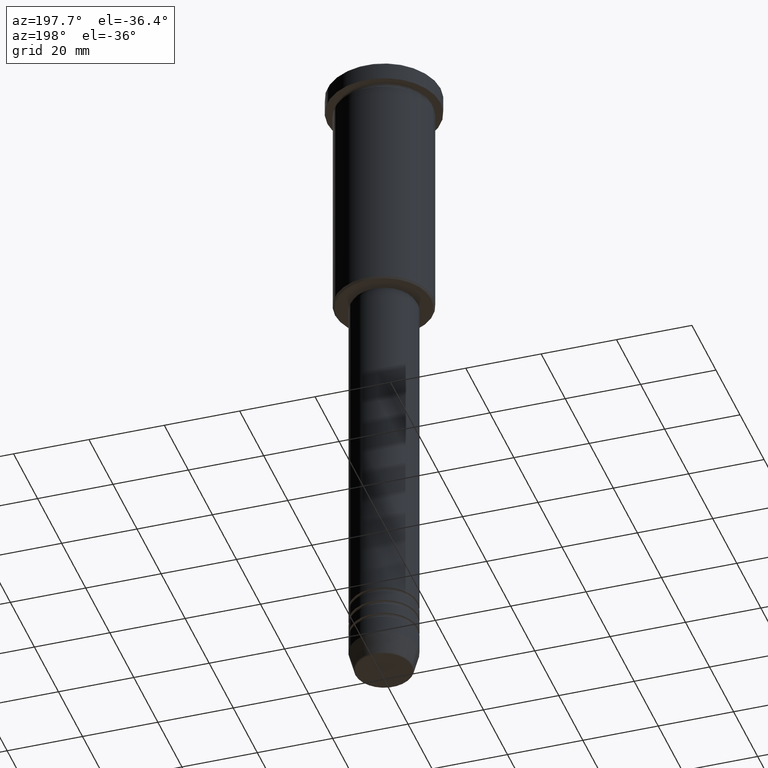
[diagram: clean part render]
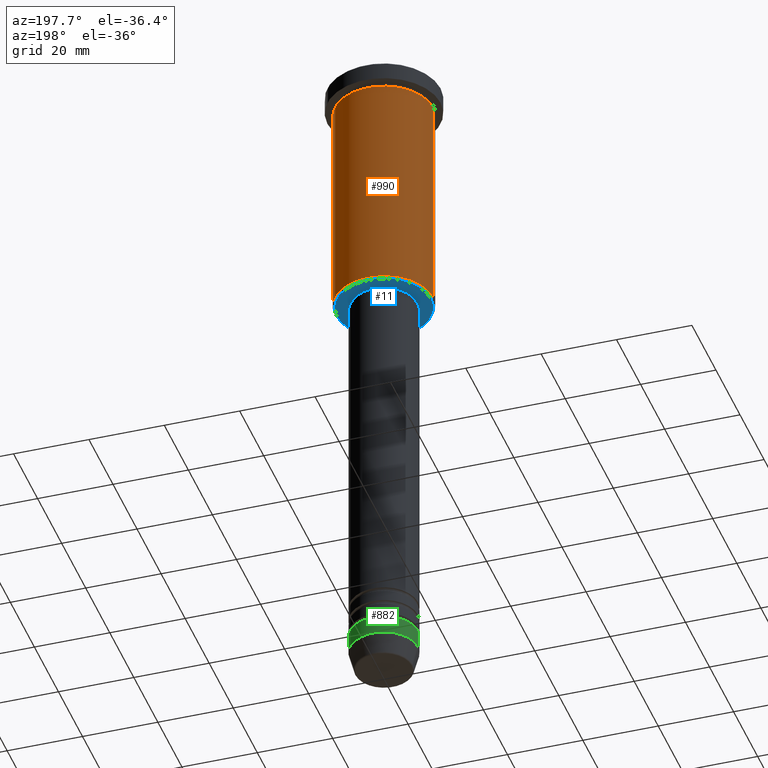
[diagram: same view with three faces highlighted in distinct colors, each labeled with its STEP entity id]
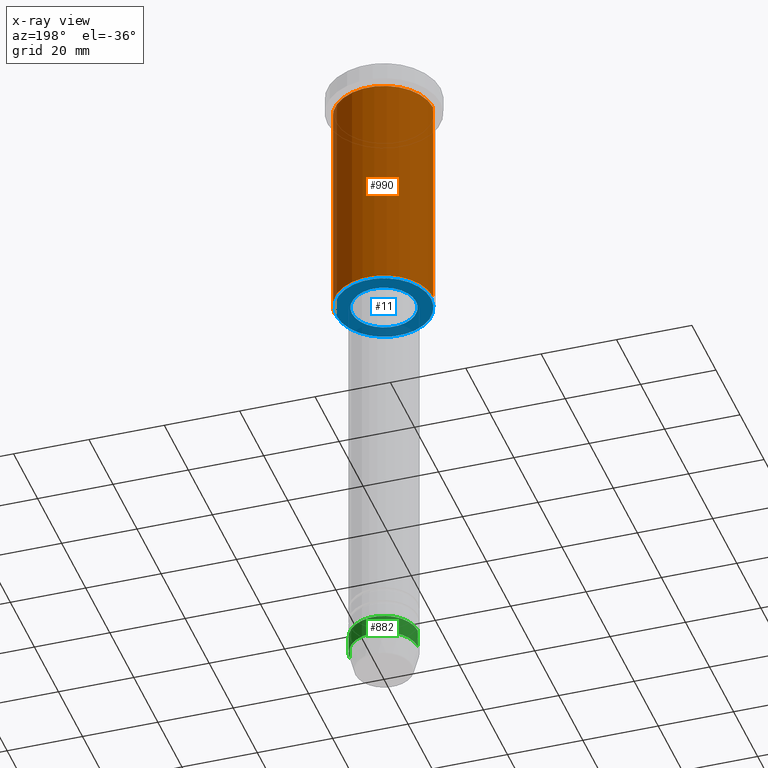
[diagram: x-ray of the same camera — body ghosted, the three highlighted faces saturated]
A machine part, auxiliary view with three faces highlighted in distinct colors.
The next image is the same camera in x-ray (body ghosted, the three faces saturated) — at least one of them is partly hidden behind the body in this view.
Their STEP definitions:

[orange] entity #990 — the highlighted cylindrical surface (partial cylindrical patch) has radius 13 mm, axis along (-0, -0, 1).
#69 = CARTESIAN_POINT ( 'NONE',  ( -13.00000000000000178, 1.592040838891559293E-15, 0.000000000000000000 ) ) ;
#75 = DIRECTION ( 'NONE',  ( -0.000000000000000000, -0.000000000000000000, 1.000000000000000000 ) ) ;
#129 = VERTEX_POINT ( 'NONE', #585 ) ;
#149 = DIRECTION ( 'NONE',  ( -0.000000000000000000, -0.000000000000000000, 1.000000000000000000 ) ) ;
#184 = CARTESIAN_POINT ( 'NONE',  ( -13.00000000000000178, 1.592040838891559293E-15, -65.50000000000004263 ) ) ;
#202 = CARTESIAN_POINT ( 'NONE',  ( 0.000000000000000000, 0.000000000000000000, -5.999999999999999112 ) ) ;
#250 = DIRECTION ( 'NONE',  ( 1.000000000000000000, 0.000000000000000000, 0.000000000000000000 ) ) ;
#316 = CIRCLE ( 'NONE', #644, 13.00000000000000178 ) ;
#328 = DIRECTION ( 'NONE',  ( -0.000000000000000000, -0.000000000000000000, 1.000000000000000000 ) ) ;
#370 = CARTESIAN_POINT ( 'NONE',  ( 13.00000000000000178, 0.000000000000000000, 0.000000000000000000 ) ) ;
#381 = ORIENTED_EDGE ( 'NONE', *, *, #1063, .F. ) ;
#429 = AXIS2_PLACEMENT_3D ( 'NONE', #895, #149, #250 ) ;
#438 = DIRECTION ( 'NONE',  ( -1.000000000000000000, 0.000000000000000000, 0.000000000000000000 ) ) ;
#440 = VERTEX_POINT ( 'NONE', #967 ) ;
#464 = DIRECTION ( 'NONE',  ( -0.000000000000000000, -0.000000000000000000, 1.000000000000000000 ) ) ;
#519 = CYLINDRICAL_SURFACE ( 'NONE', #429, 13.00000000000000178 ) ;
#520 = EDGE_CURVE ( 'NONE', #129, #1035, #316, .T. ) ;
#533 = LINE ( 'NONE', #370, #568 ) ;
#548 = EDGE_CURVE ( 'NONE', #1035, #573, #792, .T. ) ;
#568 = VECTOR ( 'NONE', #464, 1000.000000000000000 ) ;
#573 = VERTEX_POINT ( 'NONE', #980 ) ;
#583 = AXIS2_PLACEMENT_3D ( 'NONE', #202, #1005, #660 ) ;
#585 = CARTESIAN_POINT ( 'NONE',  ( 13.00000000000000178, 0.000000000000000000, -65.50000000000004263 ) ) ;
#644 = AXIS2_PLACEMENT_3D ( 'NONE', #694, #75, #438 ) ;
#655 = EDGE_CURVE ( 'NONE', #440, #573, #1129, .T. ) ;
#660 = DIRECTION ( 'NONE',  ( 1.000000000000000000, 0.000000000000000000, 0.000000000000000000 ) ) ;
#694 = CARTESIAN_POINT ( 'NONE',  ( 0.000000000000000000, 0.000000000000000000, -65.50000000000004263 ) ) ;
#748 = EDGE_LOOP ( 'NONE', ( #1095, #1070, #1176, #381 ) ) ;
#792 = LINE ( 'NONE', #69, #1007 ) ;
#895 = CARTESIAN_POINT ( 'NONE',  ( 0.000000000000000000, 0.000000000000000000, 0.000000000000000000 ) ) ;
#958 = FACE_OUTER_BOUND ( 'NONE', #748, .T. ) ;
#967 = CARTESIAN_POINT ( 'NONE',  ( 13.00000000000000178, 0.000000000000000000, -5.999999999999999112 ) ) ;
#980 = CARTESIAN_POINT ( 'NONE',  ( -13.00000000000000178, 1.592040838891559293E-15, -5.999999999999999112 ) ) ;
#990 = ADVANCED_FACE ( 'NONE', ( #958 ), #519, .T. ) ;
#1005 = DIRECTION ( 'NONE',  ( -0.000000000000000000, -0.000000000000000000, 1.000000000000000000 ) ) ;
#1007 = VECTOR ( 'NONE', #328, 1000.000000000000000 ) ;
#1035 = VERTEX_POINT ( 'NONE', #184 ) ;
#1063 = EDGE_CURVE ( 'NONE', #129, #440, #533, .T. ) ;
#1070 = ORIENTED_EDGE ( 'NONE', *, *, #548, .T. ) ;
#1095 = ORIENTED_EDGE ( 'NONE', *, *, #520, .T. ) ;
#1129 = CIRCLE ( 'NONE', #583, 13.00000000000000178 ) ;
#1176 = ORIENTED_EDGE ( 'NONE', *, *, #655, .F. ) ;

[blue] entity #11 — the highlighted planar face has unit normal (0, 0, -1).
#11 = ADVANCED_FACE ( 'NONE', ( #1075, #960 ), #70, .T. ) ;
#16 = DIRECTION ( 'NONE',  ( -1.000000000000000000, 0.000000000000000000, 0.000000000000000000 ) ) ;
#36 = DIRECTION ( 'NONE',  ( 1.000000000000000000, 0.000000000000000000, 0.000000000000000000 ) ) ;
#70 = PLANE ( 'NONE',  #242 ) ;
#119 = CARTESIAN_POINT ( 'NONE',  ( 0.000000000000000000, 0.000000000000000000, -66.00000000000000000 ) ) ;
#121 = VERTEX_POINT ( 'NONE', #705 ) ;
#150 = DIRECTION ( 'NONE',  ( -1.000000000000000000, 0.000000000000000000, 0.000000000000000000 ) ) ;
#157 = ORIENTED_EDGE ( 'NONE', *, *, #375, .T. ) ;
#209 = EDGE_CURVE ( 'NONE', #121, #385, #602, .T. ) ;
#226 = AXIS2_PLACEMENT_3D ( 'NONE', #1136, #388, #36 ) ;
#242 = AXIS2_PLACEMENT_3D ( 'NONE', #695, #401, #686 ) ;
#279 = VERTEX_POINT ( 'NONE', #1175 ) ;
#291 = CARTESIAN_POINT ( 'NONE',  ( 0.000000000000000000, 0.000000000000000000, -66.00000000000000000 ) ) ;
#360 = EDGE_LOOP ( 'NONE', ( #949, #396 ) ) ;
#375 = EDGE_CURVE ( 'NONE', #1051, #279, #701, .T. ) ;
#385 = VERTEX_POINT ( 'NONE', #404 ) ;
#388 = DIRECTION ( 'NONE',  ( -0.000000000000000000, -0.000000000000000000, 1.000000000000000000 ) ) ;
#396 = ORIENTED_EDGE ( 'NONE', *, *, #209, .T. ) ;
#401 = DIRECTION ( 'NONE',  ( 0.000000000000000000, 0.000000000000000000, -1.000000000000000000 ) ) ;
#404 = CARTESIAN_POINT ( 'NONE',  ( 12.50000000000002487, 0.000000000000000000, -66.00000000000000000 ) ) ;
#418 = EDGE_CURVE ( 'NONE', #385, #121, #889, .T. ) ;
#471 = DIRECTION ( 'NONE',  ( 1.000000000000000000, 0.000000000000000000, 0.000000000000000000 ) ) ;
#602 = CIRCLE ( 'NONE', #908, 12.50000000000002487 ) ;
#604 = AXIS2_PLACEMENT_3D ( 'NONE', #291, #661, #150 ) ;
#661 = DIRECTION ( 'NONE',  ( 0.000000000000000000, 0.000000000000000000, -1.000000000000000000 ) ) ;
#684 = DIRECTION ( 'NONE',  ( -0.000000000000000000, -0.000000000000000000, 1.000000000000000000 ) ) ;
#686 = DIRECTION ( 'NONE',  ( -1.000000000000000000, 0.000000000000000000, -0.000000000000000000 ) ) ;
#695 = CARTESIAN_POINT ( 'NONE',  ( 0.000000000000000000, 13.00000000000000000, -66.00000000000000000 ) ) ;
#701 = CIRCLE ( 'NONE', #1128, 8.500000000000000000 ) ;
#705 = CARTESIAN_POINT ( 'NONE',  ( -12.50000000000002487, 1.561424668912876886E-15, -66.00000000000000000 ) ) ;
#809 = EDGE_CURVE ( 'NONE', #279, #1051, #1047, .T. ) ;
#824 = CARTESIAN_POINT ( 'NONE',  ( 0.000000000000000000, 0.000000000000000000, -66.00000000000000000 ) ) ;
#873 = EDGE_LOOP ( 'NONE', ( #1068, #157 ) ) ;
#889 = CIRCLE ( 'NONE', #604, 12.50000000000002487 ) ;
#908 = AXIS2_PLACEMENT_3D ( 'NONE', #824, #982, #16 ) ;
#949 = ORIENTED_EDGE ( 'NONE', *, *, #418, .T. ) ;
#960 = FACE_BOUND ( 'NONE', #873, .T. ) ;
#982 = DIRECTION ( 'NONE',  ( 0.000000000000000000, 0.000000000000000000, -1.000000000000000000 ) ) ;
#1047 = CIRCLE ( 'NONE', #226, 8.500000000000000000 ) ;
#1051 = VERTEX_POINT ( 'NONE', #1182 ) ;
#1068 = ORIENTED_EDGE ( 'NONE', *, *, #809, .T. ) ;
#1075 = FACE_OUTER_BOUND ( 'NONE', #360, .T. ) ;
#1128 = AXIS2_PLACEMENT_3D ( 'NONE', #119, #684, #471 ) ;
#1136 = CARTESIAN_POINT ( 'NONE',  ( 0.000000000000000000, 0.000000000000000000, -66.00000000000000000 ) ) ;
#1175 = CARTESIAN_POINT ( 'NONE',  ( 8.500000000000000000, 0.000000000000000000, -66.00000000000000000 ) ) ;
#1182 = CARTESIAN_POINT ( 'NONE',  ( -8.500000000000000000, 1.040949779275250140E-15, -66.00000000000000000 ) ) ;

[green] entity #882 — the highlighted cylindrical surface (edge-blend (fillet) strip) has radius 9 mm, axis along (-0, -0, 1).
#64 = CARTESIAN_POINT ( 'NONE',  ( -9.000000000000001776, 1.102182119232617911E-15, 0.000000000000000000 ) ) ;
#218 = VERTEX_POINT ( 'NONE', #351 ) ;
#241 = CARTESIAN_POINT ( 'NONE',  ( 0.000000000000000000, 0.000000000000000000, -169.5000000000000000 ) ) ;
#305 = LINE ( 'NONE', #578, #648 ) ;
#311 = ORIENTED_EDGE ( 'NONE', *, *, #484, .F. ) ;
#317 = CIRCLE ( 'NONE', #628, 9.000000000000001776 ) ;
#347 = CARTESIAN_POINT ( 'NONE',  ( 0.000000000000000000, 0.000000000000000000, 0.000000000000000000 ) ) ;
#351 = CARTESIAN_POINT ( 'NONE',  ( 9.000000000000001776, 0.000000000000000000, -174.5000000000000284 ) ) ;
#357 = DIRECTION ( 'NONE',  ( 1.000000000000000000, 0.000000000000000000, 0.000000000000000000 ) ) ;
#376 = ORIENTED_EDGE ( 'NONE', *, *, #536, .T. ) ;
#378 = CARTESIAN_POINT ( 'NONE',  ( 0.000000000000000000, 0.000000000000000000, -174.5000000000000284 ) ) ;
#389 = CIRCLE ( 'NONE', #665, 9.000000000000000000 ) ;
#431 = DIRECTION ( 'NONE',  ( 1.000000000000000000, 0.000000000000000000, 0.000000000000000000 ) ) ;
#437 = CYLINDRICAL_SURFACE ( 'NONE', #502, 9.000000000000001776 ) ;
#459 = CARTESIAN_POINT ( 'NONE',  ( -9.000000000000000000, 1.102182119232617714E-15, -169.5000000000000000 ) ) ;
#484 = EDGE_CURVE ( 'NONE', #955, #1082, #389, .T. ) ;
#502 = AXIS2_PLACEMENT_3D ( 'NONE', #347, #510, #431 ) ;
#510 = DIRECTION ( 'NONE',  ( -0.000000000000000000, -0.000000000000000000, 1.000000000000000000 ) ) ;
#536 = EDGE_CURVE ( 'NONE', #752, #1082, #995, .T. ) ;
#563 = DIRECTION ( 'NONE',  ( -0.000000000000000000, -0.000000000000000000, 1.000000000000000000 ) ) ;
#578 = CARTESIAN_POINT ( 'NONE',  ( 9.000000000000001776, 0.000000000000000000, 0.000000000000000000 ) ) ;
#624 = DIRECTION ( 'NONE',  ( -0.000000000000000000, -0.000000000000000000, 1.000000000000000000 ) ) ;
#628 = AXIS2_PLACEMENT_3D ( 'NONE', #378, #925, #357 ) ;
#648 = VECTOR ( 'NONE', #563, 1000.000000000000000 ) ;
#665 = AXIS2_PLACEMENT_3D ( 'NONE', #241, #624, #1174 ) ;
#703 = EDGE_CURVE ( 'NONE', #218, #752, #317, .T. ) ;
#752 = VERTEX_POINT ( 'NONE', #1029 ) ;
#781 = DIRECTION ( 'NONE',  ( -0.000000000000000000, -0.000000000000000000, 1.000000000000000000 ) ) ;
#784 = ORIENTED_EDGE ( 'NONE', *, *, #1181, .F. ) ;
#804 = CARTESIAN_POINT ( 'NONE',  ( 9.000000000000000000, 0.000000000000000000, -169.5000000000000000 ) ) ;
#812 = VECTOR ( 'NONE', #781, 1000.000000000000000 ) ;
#855 = FACE_OUTER_BOUND ( 'NONE', #1058, .T. ) ;
#882 = ADVANCED_FACE ( 'NONE', ( #855 ), #437, .T. ) ;
#925 = DIRECTION ( 'NONE',  ( -0.000000000000000000, -0.000000000000000000, 1.000000000000000000 ) ) ;
#955 = VERTEX_POINT ( 'NONE', #804 ) ;
#995 = LINE ( 'NONE', #64, #812 ) ;
#1029 = CARTESIAN_POINT ( 'NONE',  ( -9.000000000000001776, 1.102182119232617911E-15, -174.5000000000000284 ) ) ;
#1058 = EDGE_LOOP ( 'NONE', ( #1135, #376, #311, #784 ) ) ;
#1082 = VERTEX_POINT ( 'NONE', #459 ) ;
#1135 = ORIENTED_EDGE ( 'NONE', *, *, #703, .T. ) ;
#1174 = DIRECTION ( 'NONE',  ( 1.000000000000000000, 0.000000000000000000, 0.000000000000000000 ) ) ;
#1181 = EDGE_CURVE ( 'NONE', #218, #955, #305, .T. ) ;